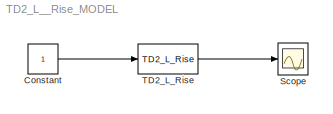
MODEL TD2_L__Rise_MODEL
KIND model
BLOCK [Constant] Constant
  SID = 2
BLOCK [Scope] Scope
  DataFormat = StructureWithTime
  Floating = off
  NumInputPorts = 1
  Ports = [1]
  SID = 3
  SampleTime = 0
  TickLabels = on
  TimeRange = 10
  YMax = 10
  YMin = 0
BLOCK [Reference] TD2_L_Rise  REF=ADRC/TD/TD2_L_Rise
  Ports = [1, 1]
  RisingTime = 5
  SID = 1
  SampleTime = 0.02
  SourceBlock = ADRC/TD/TD2_L_Rise
LINE Constant:1 -> TD2_L_Rise:1
LINE TD2_L_Rise:1 -> Scope:1
